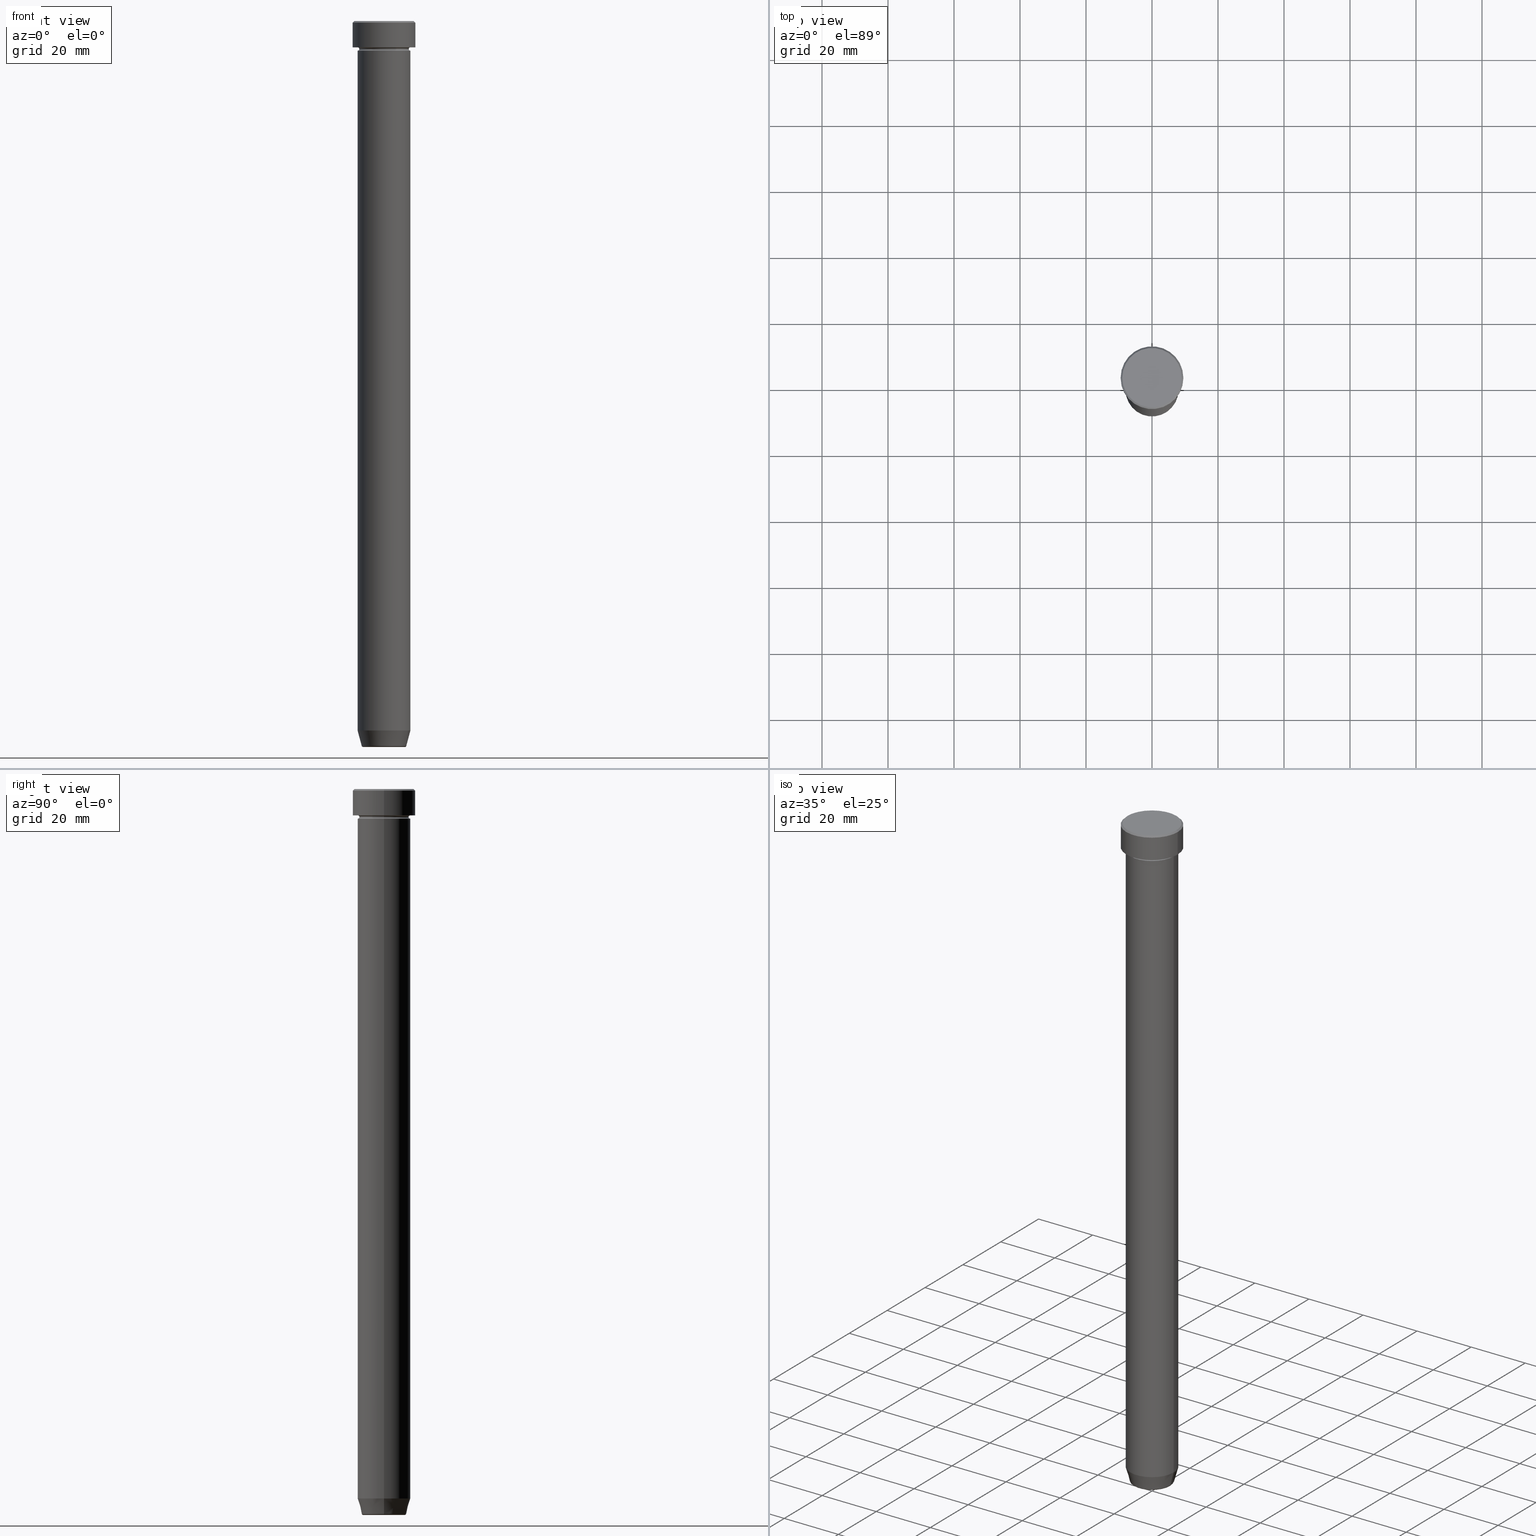
[diagram: canonical four-view strip — front | top / right | iso, engineering-drawing reading convention]
A machine part, canonical four-view strip (front | top / right | iso — engineering-drawing reading convention). The complete STEP part file that produces these views, byte-faithful:
ISO-10303-21;
HEADER;
FILE_DESCRIPTION (( 'STEP AP203' ),
    '1' );
FILE_NAME ('68cf.STEP',
    '2024-01-02T22:10:11',
    ( '' ),
    ( '' ),
    'SwSTEP 2.0',
    'SolidWorks 2019',
    '' );
FILE_SCHEMA (( 'CONFIG_CONTROL_DESIGN' ));
ENDSEC;

DATA;
#1 = DIRECTION ( 'NONE',  ( -0.000000000000000000, -1.000000000000000000, -0.000000000000000000 ) ) ;
#2 = EDGE_CURVE ( 'NONE', #272, #410, #434, .T. ) ;
#3 = AXIS2_PLACEMENT_3D ( 'NONE', #314, #321, #504 ) ;
#4 =( GEOMETRIC_REPRESENTATION_CONTEXT ( 3 ) GLOBAL_UNCERTAINTY_ASSIGNED_CONTEXT ( ( #342 ) ) GLOBAL_UNIT_ASSIGNED_CONTEXT ( ( #583, #220, #405 ) ) REPRESENTATION_CONTEXT ( 'NONE', 'WORKASPACE' ) );
#5 = DIRECTION ( 'NONE',  ( -0.000000000000000000, -0.000000000000000000, 1.000000000000000000 ) ) ;
#6 = ADVANCED_FACE ( 'NONE', ( #62 ), #565, .T. ) ;
#7 = CARTESIAN_POINT ( 'NONE',  ( 0.000000000000000000, 0.000000000000000000, 0.000000000000000000 ) ) ;
#8 = DIRECTION ( 'NONE',  ( 1.000000000000000000, 0.000000000000000000, 0.000000000000000000 ) ) ;
#9 = AXIS2_PLACEMENT_3D ( 'NONE', #75, #124, #331 ) ;
#10 = CARTESIAN_POINT ( 'NONE',  ( 8.000000000000000000, 0.000000000000000000, -22.00000000000000000 ) ) ;
#11 = AXIS2_PLACEMENT_3D ( 'NONE', #529, #24, #266 ) ;
#12 = ORIENTED_EDGE ( 'NONE', *, *, #205, .T. ) ;
#13 = CARTESIAN_POINT ( 'NONE',  ( -9.500000000000000000, 1.163414459189985485E-15, -0.4999999999999968914 ) ) ;
#14 = DIRECTION ( 'NONE',  ( -1.000000000000000000, 0.000000000000000000, 0.000000000000000000 ) ) ;
#15 = EDGE_LOOP ( 'NONE', ( #177, #73 ) ) ;
#16 = LINE ( 'NONE', #152, #151 ) ;
#17 = DIRECTION ( 'NONE',  ( -1.000000000000000000, 0.000000000000000000, 0.000000000000000000 ) ) ;
#18 = ADVANCED_FACE ( 'NONE', ( #213 ), #460, .F. ) ;
#19 = ORIENTED_EDGE ( 'NONE', *, *, #248, .F. ) ;
#20 = DIRECTION ( 'NONE',  ( -0.000000000000000000, -0.000000000000000000, 1.000000000000000000 ) ) ;
#21 = CIRCLE ( 'NONE', #508, 0.5000000000000004441 ) ;
#22 = PRODUCT_DEFINITION_FORMATION_WITH_SPECIFIED_SOURCE ( 'LIBOVOLN�', '', #510, .NOT_KNOWN. ) ;
#23 = ORIENTED_EDGE ( 'NONE', *, *, #292, .F. ) ;
#24 = DIRECTION ( 'NONE',  ( -0.000000000000000000, -0.000000000000000000, 1.000000000000000000 ) ) ;
#25 = ORIENTED_EDGE ( 'NONE', *, *, #348, .F. ) ;
#26 = CARTESIAN_POINT ( 'NONE',  ( -6.276590543854897675, 7.686606519090446054E-16, -219.5000000000000000 ) ) ;
#27 = EDGE_CURVE ( 'NONE', #484, #114, #570, .T. ) ;
#28 = CIRCLE ( 'NONE', #534, 6.759553456999428001 ) ;
#29 = APPROVAL_STATUS ( 'not_yet_approved' ) ;
#30 = ORIENTED_EDGE ( 'NONE', *, *, #2, .F. ) ;
#31 = FACE_OUTER_BOUND ( 'NONE', #493, .T. ) ;
#32 = AXIS2_PLACEMENT_3D ( 'NONE', #588, #540, #122 ) ;
#33 = CARTESIAN_POINT ( 'NONE',  ( 0.000000000000000000, 0.000000000000000000, 0.000000000000000000 ) ) ;
#34 = VERTEX_POINT ( 'NONE', #531 ) ;
#35 = CC_DESIGN_PERSON_AND_ORGANIZATION_ASSIGNMENT ( #240, #76, ( #22 ) ) ;
#36 = CYLINDRICAL_SURFACE ( 'NONE', #102, 9.500000000000000000 ) ;
#37 = APPROVAL_ROLE ( '' ) ;
#38 = EDGE_LOOP ( 'NONE', ( #225, #232, #66, #397 ) ) ;
#39 = CYLINDRICAL_SURFACE ( 'NONE', #499, 8.000000000000000000 ) ;
#40 = CALENDAR_DATE ( 2024, 2, 1 ) ;
#41 = CIRCLE ( 'NONE', #413, 9.500000000000000000 ) ;
#42 = AXIS2_PLACEMENT_3D ( 'NONE', #418, #148, #421 ) ;
#43 = EDGE_CURVE ( 'NONE', #578, #78, #519, .T. ) ;
#44 = DIRECTION ( 'NONE',  ( 1.000000000000000000, 0.000000000000000000, 0.000000000000000000 ) ) ;
#45 = EDGE_CURVE ( 'NONE', #161, #467, #55, .T. ) ;
#46 = CARTESIAN_POINT ( 'NONE',  ( 9.500000000000000000, 0.000000000000000000, -8.000000000000000000 ) ) ;
#47 = CC_DESIGN_PERSON_AND_ORGANIZATION_ASSIGNMENT ( #282, #365, ( #22 ) ) ;
#48 = CARTESIAN_POINT ( 'NONE',  ( 0.000000000000000000, 0.000000000000000000, -8.000000000000000000 ) ) ;
#49 = CARTESIAN_POINT ( 'NONE',  ( -9.000000000000001776, 0.000000000000000000, 0.000000000000000000 ) ) ;
#50 = AXIS2_PLACEMENT_3D ( 'NONE', #576, #356, #343 ) ;
#51 = DIRECTION ( 'NONE',  ( 1.000000000000000000, 0.000000000000000000, 0.000000000000000000 ) ) ;
#52 = DIRECTION ( 'NONE',  ( -0.000000000000000000, -0.000000000000000000, 1.000000000000000000 ) ) ;
#53 = EDGE_CURVE ( 'NONE', #63, #543, #466, .T. ) ;
#54 = FACE_OUTER_BOUND ( 'NONE', #208, .T. ) ;
#55 = LINE ( 'NONE', #430, #552 ) ;
#56 = FACE_OUTER_BOUND ( 'NONE', #15, .T. ) ;
#57 = TOROIDAL_SURFACE ( 'NONE', #300, 6.276590543854897675, 0.5000000000000000000 ) ;
#58 = ORIENTED_EDGE ( 'NONE', *, *, #96, .F. ) ;
#59 = CARTESIAN_POINT ( 'NONE',  ( 0.000000000000000000, 0.000000000000000000, -8.000000000000000000 ) ) ;
#60 = AXIS2_PLACEMENT_3D ( 'NONE', #432, #256, #426 ) ;
#61 = ORIENTED_EDGE ( 'NONE', *, *, #506, .T. ) ;
#62 = FACE_OUTER_BOUND ( 'NONE', #390, .T. ) ;
#63 = VERTEX_POINT ( 'NONE', #100 ) ;
#64 = CARTESIAN_POINT ( 'NONE',  ( 8.000000000000000000, 9.797174393178825657E-16, -8.500000000000000000 ) ) ;
#65 = EDGE_CURVE ( 'NONE', #157, #233, #239, .T. ) ;
#66 = ORIENTED_EDGE ( 'NONE', *, *, #381, .T. ) ;
#67 = FACE_OUTER_BOUND ( 'NONE', #392, .T. ) ;
#68 = AXIS2_PLACEMENT_3D ( 'NONE', #530, #350, #255 ) ;
#69 = ORIENTED_EDGE ( 'NONE', *, *, #283, .T. ) ;
#70 = DIRECTION ( 'NONE',  ( 1.000000000000000000, 0.000000000000000000, 0.000000000000000000 ) ) ;
#71 = AXIS2_PLACEMENT_3D ( 'NONE', #380, #5, #51 ) ;
#72 = ORIENTED_EDGE ( 'NONE', *, *, #43, .F. ) ;
#73 = ORIENTED_EDGE ( 'NONE', *, *, #348, .T. ) ;
#74 = APPROVAL ( #29, 'NEUR�EN�' ) ;
#75 = CARTESIAN_POINT ( 'NONE',  ( 0.000000000000000000, 0.000000000000000000, -22.00000000000000000 ) ) ;
#76 = PERSON_AND_ORGANIZATION_ROLE ( 'design_supplier' ) ;
#77 = ORIENTED_EDGE ( 'NONE', *, *, #561, .T. ) ;
#78 = VERTEX_POINT ( 'NONE', #89 ) ;
#79 = CYLINDRICAL_SURFACE ( 'NONE', #32, 8.000000000000000000 ) ;
#80 = FACE_OUTER_BOUND ( 'NONE', #352, .T. ) ;
#81 = ORIENTED_EDGE ( 'NONE', *, *, #561, .F. ) ;
#82 = CARTESIAN_POINT ( 'NONE',  ( 0.000000000000000000, 0.000000000000000000, -8.500000000000000000 ) ) ;
#83 = AXIS2_PLACEMENT_3D ( 'NONE', #320, #171, #219 ) ;
#84 = APPROVAL_DATE_TIME ( #598, #440 ) ;
#85 = ORIENTED_EDGE ( 'NONE', *, *, #45, .T. ) ;
#86 = LOCAL_TIME ( 23, 10, 11.00000000000000000, #181 ) ;
#87 = CARTESIAN_POINT ( 'NONE',  ( 8.000000000000000000, 0.000000000000000000, 0.000000000000000000 ) ) ;
#88 = FACE_OUTER_BOUND ( 'NONE', #400, .T. ) ;
#89 = CARTESIAN_POINT ( 'NONE',  ( 9.500000000000000000, 0.000000000000000000, -0.4999999999999968914 ) ) ;
#90 = APPROVAL_ROLE ( '' ) ;
#91 = CC_DESIGN_DATE_AND_TIME_ASSIGNMENT ( #128, #497, ( #245 ) ) ;
#92 = APPROVAL_ROLE ( '' ) ;
#93 = DIRECTION ( 'NONE',  ( -0.000000000000000000, -0.000000000000000000, 1.000000000000000000 ) ) ;
#94 = CIRCLE ( 'NONE', #250, 9.500000000000000000 ) ;
#95 = CC_DESIGN_APPROVAL ( #440, ( #245 ) ) ;
#96 = EDGE_CURVE ( 'NONE', #120, #176, #28, .T. ) ;
#97 = DIRECTION ( 'NONE',  ( 1.000000000000000000, 0.000000000000000000, 0.000000000000000000 ) ) ;
#98 = CYLINDRICAL_SURFACE ( 'NONE', #554, 8.000000000000000000 ) ;
#99 = FACE_OUTER_BOUND ( 'NONE', #394, .T. ) ;
#100 = CARTESIAN_POINT ( 'NONE',  ( -9.000000000000001776, 0.000000000000000000, 0.000000000000000000 ) ) ;
#101 = CC_DESIGN_PERSON_AND_ORGANIZATION_ASSIGNMENT ( #126, #491, ( #510 ) ) ;
#102 = AXIS2_PLACEMENT_3D ( 'NONE', #443, #415, #270 ) ;
#103 = AXIS2_PLACEMENT_3D ( 'NONE', #333, #1, #458 ) ;
#104 = DIRECTION ( 'NONE',  ( 1.000000000000000000, 0.000000000000000000, 0.000000000000000000 ) ) ;
#105 = CARTESIAN_POINT ( 'NONE',  ( 9.000000000000001776, 1.102182119232617911E-15, 0.000000000000000000 ) ) ;
#106 = CARTESIAN_POINT ( 'NONE',  ( 8.000000000000000000, 0.000000000000000000, -22.00000000000000000 ) ) ;
#107 = VECTOR ( 'NONE', #469, 999.9999999999998863 ) ;
#108 = ORIENTED_EDGE ( 'NONE', *, *, #283, .F. ) ;
#109 = CARTESIAN_POINT ( 'NONE',  ( 0.000000000000000000, 0.000000000000000000, 0.000000000000000000 ) ) ;
#110 = ORIENTED_EDGE ( 'NONE', *, *, #473, .T. ) ;
#111 = ORIENTED_EDGE ( 'NONE', *, *, #316, .F. ) ;
#112 = CARTESIAN_POINT ( 'NONE',  ( 0.000000000000000000, 0.000000000000000000, -219.6294095225512422 ) ) ;
#113 = EDGE_CURVE ( 'NONE', #535, #435, #211, .T. ) ;
#114 = VERTEX_POINT ( 'NONE', #228 ) ;
#115 = CARTESIAN_POINT ( 'NONE',  ( -9.500000000000000000, 1.163414459189985485E-15, -8.000000000000000000 ) ) ;
#116 = ADVANCED_FACE ( 'NONE', ( #88 ), #388, .F. ) ;
#117 = CARTESIAN_POINT ( 'NONE',  ( 0.000000000000000000, 0.000000000000000000, -8.500000000000000000 ) ) ;
#118 = DIRECTION ( 'NONE',  ( 1.000000000000000000, 0.000000000000000000, 0.000000000000000000 ) ) ;
#119 = ORIENTED_EDGE ( 'NONE', *, *, #375, .F. ) ;
#120 = VERTEX_POINT ( 'NONE', #280 ) ;
#121 = EDGE_LOOP ( 'NONE', ( #19, #525, #170, #165 ) ) ;
#122 = DIRECTION ( 'NONE',  ( 1.000000000000000000, 0.000000000000000000, 0.000000000000000000 ) ) ;
#123 = CIRCLE ( 'NONE', #226, 0.4999999999999995559 ) ;
#124 = DIRECTION ( 'NONE',  ( 0.000000000000000000, 0.000000000000000000, -1.000000000000000000 ) ) ;
#125 = ORIENTED_EDGE ( 'NONE', *, *, #238, .F. ) ;
#126 = PERSON_AND_ORGANIZATION ( #290, #327 ) ;
#127 = FACE_OUTER_BOUND ( 'NONE', #318, .T. ) ;
#128 = DATE_AND_TIME ( #444, #196 ) ;
#129 = ORIENTED_EDGE ( 'NONE', *, *, #198, .T. ) ;
#130 = ORIENTED_EDGE ( 'NONE', *, *, #457, .F. ) ;
#131 = CARTESIAN_POINT ( 'NONE',  ( 0.000000000000000000, 0.000000000000000000, -22.00000000000000000 ) ) ;
#132 = AXIS2_PLACEMENT_3D ( 'NONE', #242, #584, #183 ) ;
#133 = APPROVAL_DATE_TIME ( #140, #515 ) ;
#134 = CARTESIAN_POINT ( 'NONE',  ( 6.759553456999428001, 0.000000000000000000, -219.6294095225512422 ) ) ;
#135 = ADVANCED_FACE ( 'NONE', ( #411 ), #36, .T. ) ;
#136 = TOROIDAL_SURFACE ( 'NONE', #312, 6.276590543854897675, 0.5000000000000000000 ) ;
#137 = AXIS2_PLACEMENT_3D ( 'NONE', #141, #93, #559 ) ;
#138 = ORIENTED_EDGE ( 'NONE', *, *, #423, .F. ) ;
#139 = DIRECTION ( 'NONE',  ( -0.000000000000000000, -0.000000000000000000, 1.000000000000000000 ) ) ;
#140 = DATE_AND_TIME ( #456, #86 ) ;
#141 = CARTESIAN_POINT ( 'NONE',  ( 0.000000000000000000, 0.000000000000000000, -8.000000000000000000 ) ) ;
#142 = ADVANCED_FACE ( 'NONE', ( #592 ), #184, .F. ) ;
#143 = CARTESIAN_POINT ( 'NONE',  ( 0.000000000000000000, 0.000000000000000000, -220.0000000000000000 ) ) ;
#144 = AXIS2_PLACEMENT_3D ( 'NONE', #82, #541, #364 ) ;
#145 = CIRCLE ( 'NONE', #60, 8.000000000000000000 ) ;
#146 = LOCAL_TIME ( 23, 10, 11.00000000000000000, #487 ) ;
#147 = ADVANCED_BREP_SHAPE_REPRESENTATION ( '68cf', ( #490, #303, #83 ), #4 ) ;
#148 = DIRECTION ( 'NONE',  ( -0.000000000000000000, -0.000000000000000000, 1.000000000000000000 ) ) ;
#149 = CARTESIAN_POINT ( 'NONE',  ( 0.000000000000000000, 0.000000000000000000, -22.00000000000000000 ) ) ;
#150 = DIRECTION ( 'NONE',  ( -0.000000000000000000, -0.000000000000000000, 1.000000000000000000 ) ) ;
#151 = VECTOR ( 'NONE', #520, 1000.000000000000000 ) ;
#152 = CARTESIAN_POINT ( 'NONE',  ( 9.500000000000000000, 0.000000000000000000, 0.000000000000000000 ) ) ;
#153 = EDGE_CURVE ( 'NONE', #114, #120, #123, .T. ) ;
#154 = DIRECTION ( 'NONE',  ( -1.000000000000000000, 0.000000000000000000, -0.000000000000000000 ) ) ;
#155 = ORIENTED_EDGE ( 'NONE', *, *, #468, .F. ) ;
#156 = DIRECTION ( 'NONE',  ( 0.000000000000000000, -1.000000000000000000, 0.000000000000000000 ) ) ;
#157 = VERTEX_POINT ( 'NONE', #597 ) ;
#158 = APPLICATION_CONTEXT ( 'configuration controlled 3d designs of mechanical parts and assemblies' ) ;
#159 = EDGE_CURVE ( 'NONE', #435, #359, #194, .T. ) ;
#160 = AXIS2_PLACEMENT_3D ( 'NONE', #259, #203, #389 ) ;
#161 = VERTEX_POINT ( 'NONE', #371 ) ;
#162 = DIRECTION ( 'NONE',  ( -0.000000000000000000, -0.000000000000000000, 1.000000000000000000 ) ) ;
#163 = ORIENTED_EDGE ( 'NONE', *, *, #521, .T. ) ;
#164 = CIRCLE ( 'NONE', #172, 8.000000000000000000 ) ;
#165 = ORIENTED_EDGE ( 'NONE', *, *, #159, .T. ) ;
#166 = DIRECTION ( 'NONE',  ( -1.000000000000000000, -1.224646799147353454E-16, 0.000000000000000000 ) ) ;
#167 = DIRECTION ( 'NONE',  ( -1.000000000000000000, 0.000000000000000000, 0.000000000000000000 ) ) ;
#168 = ADVANCED_FACE ( 'NONE', ( #127 ), #407, .T. ) ;
#169 = EDGE_LOOP ( 'NONE', ( #344, #311 ) ) ;
#170 = ORIENTED_EDGE ( 'NONE', *, *, #419, .T. ) ;
#171 = DIRECTION ( 'NONE',  ( 0.000000000000000000, 0.000000000000000000, 1.000000000000000000 ) ) ;
#172 = AXIS2_PLACEMENT_3D ( 'NONE', #459, #462, #295 ) ;
#173 = CARTESIAN_POINT ( 'NONE',  ( 0.000000000000000000, 0.000000000000000000, -219.5000000000000000 ) ) ;
#174 = CIRCLE ( 'NONE', #103, 0.5000000000000004441 ) ;
#175 = CC_DESIGN_APPROVAL ( #515, ( #22 ) ) ;
#176 = VERTEX_POINT ( 'NONE', #134 ) ;
#177 = ORIENTED_EDGE ( 'NONE', *, *, #27, .T. ) ;
#178 = ADVANCED_FACE ( 'NONE', ( #31 ), #136, .T. ) ;
#179 = CARTESIAN_POINT ( 'NONE',  ( 0.000000000000000000, 0.000000000000000000, 0.000000000000000000 ) ) ;
#180 = PLANE ( 'NONE',  #9 ) ;
#181 = COORDINATED_UNIVERSAL_TIME_OFFSET ( 1, 0, .AHEAD. ) ;
#182 = ADVANCED_FACE ( 'NONE', ( #453 ), #461, .F. ) ;
#183 = DIRECTION ( 'NONE',  ( 1.000000000000000000, 0.000000000000000000, 0.000000000000000000 ) ) ;
#184 = TOROIDAL_SURFACE ( 'NONE', #144, 8.000000000000000000, 0.5000000000000000000 ) ;
#185 = PERSON_AND_ORGANIZATION ( #290, #327 ) ;
#186 = ORIENTED_EDGE ( 'NONE', *, *, #248, .T. ) ;
#187 = DIRECTION ( 'NONE',  ( -1.000000000000000000, 0.000000000000000000, 0.000000000000000000 ) ) ;
#188 = AXIS2_PLACEMENT_3D ( 'NONE', #326, #501, #187 ) ;
#189 = CIRCLE ( 'NONE', #231, 6.276590543854897675 ) ;
#190 = DIRECTION ( 'NONE',  ( 1.000000000000000000, 0.000000000000000000, 0.000000000000000000 ) ) ;
#191 = ADVANCED_FACE ( 'NONE', ( #317, #80 ), #492, .T. ) ;
#192 = DIRECTION ( 'NONE',  ( 0.2588190451025214056, 0.000000000000000000, 0.9659258262890680902 ) ) ;
#193 = CARTESIAN_POINT ( 'NONE',  ( 6.660254037844373975, 0.000000000000000000, -220.0000000000000000 ) ) ;
#194 = CIRCLE ( 'NONE', #287, 8.000000000000000000 ) ;
#195 = CIRCLE ( 'NONE', #137, 8.000000000000000000 ) ;
#196 = LOCAL_TIME ( 23, 10, 11.00000000000000000, #505 ) ;
#197 = DIRECTION ( 'NONE',  ( -0.000000000000000000, -0.000000000000000000, 1.000000000000000000 ) ) ;
#198 = EDGE_CURVE ( 'NONE', #543, #78, #41, .T. ) ;
#199 = DIRECTION ( 'NONE',  ( -0.000000000000000000, -0.000000000000000000, 1.000000000000000000 ) ) ;
#200 = AXIS2_PLACEMENT_3D ( 'NONE', #347, #297, #154 ) ;
#201 = DIRECTION ( 'NONE',  ( 0.000000000000000000, 0.000000000000000000, -1.000000000000000000 ) ) ;
#202 = CONICAL_SURFACE ( 'NONE', #439, 9.000000000000001776, 0.7853981633974501664 ) ;
#203 = DIRECTION ( 'NONE',  ( 0.000000000000000000, 0.000000000000000000, -1.000000000000000000 ) ) ;
#204 = DIRECTION ( 'NONE',  ( 0.000000000000000000, 0.000000000000000000, -1.000000000000000000 ) ) ;
#205 = EDGE_CURVE ( 'NONE', #535, #278, #275, .T. ) ;
#206 = EDGE_LOOP ( 'NONE', ( #546, #488, #366, #155 ) ) ;
#207 = CARTESIAN_POINT ( 'NONE',  ( 0.000000000000000000, 0.000000000000000000, 0.000000000000000000 ) ) ;
#208 = EDGE_LOOP ( 'NONE', ( #25, #218, #138, #532 ) ) ;
#209 = ORIENTED_EDGE ( 'NONE', *, *, #153, .F. ) ;
#210 = DIRECTION ( 'NONE',  ( 0.000000000000000000, -0.000000000000000000, 1.000000000000000000 ) ) ;
#211 = LINE ( 'NONE', #87, #319 ) ;
#212 = ORIENTED_EDGE ( 'NONE', *, *, #45, .F. ) ;
#213 = FACE_OUTER_BOUND ( 'NONE', #522, .T. ) ;
#214 = AXIS2_PLACEMENT_3D ( 'NONE', #509, #247, #8 ) ;
#215 = ADVANCED_FACE ( 'NONE', ( #589 ), #180, .F. ) ;
#216 = DIRECTION ( 'NONE',  ( 1.000000000000000000, 0.000000000000000000, 0.000000000000000000 ) ) ;
#217 = APPROVAL_PERSON_ORGANIZATION ( #412, #440, #92 ) ;
#218 = ORIENTED_EDGE ( 'NONE', *, *, #153, .T. ) ;
#219 = DIRECTION ( 'NONE',  ( 1.000000000000000000, 0.000000000000000000, 0.000000000000000000 ) ) ;
#220 =( NAMED_UNIT ( * ) PLANE_ANGLE_UNIT ( ) SI_UNIT ( $, .RADIAN. ) );
#221 = VECTOR ( 'NONE', #514, 999.9999999999998863 ) ;
#222 = CARTESIAN_POINT ( 'NONE',  ( 0.000000000000000000, 0.000000000000000000, -9.000000000000001776 ) ) ;
#223 = APPLICATION_PROTOCOL_DEFINITION ( 'international standard', 'config_control_design', 1994, #158 ) ;
#224 = EDGE_CURVE ( 'NONE', #431, #34, #483, .T. ) ;
#225 = ORIENTED_EDGE ( 'NONE', *, *, #496, .F. ) ;
#226 = AXIS2_PLACEMENT_3D ( 'NONE', #26, #368, #544 ) ;
#227 = DIRECTION ( 'NONE',  ( 0.000000000000000000, 0.000000000000000000, -1.000000000000000000 ) ) ;
#228 = CARTESIAN_POINT ( 'NONE',  ( -6.276590543854897675, 7.982336011935114439E-16, -220.0000000000000000 ) ) ;
#229 = AXIS2_PLACEMENT_3D ( 'NONE', #268, #304, #204 ) ;
#230 = DIRECTION ( 'NONE',  ( 0.000000000000000000, 0.000000000000000000, -1.000000000000000000 ) ) ;
#231 = AXIS2_PLACEMENT_3D ( 'NONE', #143, #201, #293 ) ;
#232 = ORIENTED_EDGE ( 'NONE', *, *, #96, .T. ) ;
#233 = VERTEX_POINT ( 'NONE', #276 ) ;
#234 = ADVANCED_FACE ( 'NONE', ( #486 ), #39, .T. ) ;
#235 = CARTESIAN_POINT ( 'NONE',  ( 0.000000000000000000, 0.000000000000000000, -0.4999999999999968914 ) ) ;
#236 = CALENDAR_DATE ( 2024, 2, 1 ) ;
#237 = ORIENTED_EDGE ( 'NONE', *, *, #43, .T. ) ;
#238 = EDGE_CURVE ( 'NONE', #233, #467, #164, .T. ) ;
#239 = LINE ( 'NONE', #328, #494 ) ;
#240 = PERSON_AND_ORGANIZATION ( #290, #327 ) ;
#241 = EDGE_CURVE ( 'NONE', #278, #359, #424, .T. ) ;
#242 = CARTESIAN_POINT ( 'NONE',  ( 0.000000000000000000, 0.000000000000000000, -8.500000000000000000 ) ) ;
#243 = CONICAL_SURFACE ( 'NONE', #214, 6.660254037844373975, 0.2617993877991501295 ) ;
#244 = PERSON_AND_ORGANIZATION_ROLE ( 'creator' ) ;
#245 = SECURITY_CLASSIFICATION ( '', '', #362 ) ;
#246 = DIRECTION ( 'NONE',  ( -1.000000000000000000, 1.224646799147353454E-16, 0.000000000000000000 ) ) ;
#247 = DIRECTION ( 'NONE',  ( -0.000000000000000000, -0.000000000000000000, 1.000000000000000000 ) ) ;
#248 = EDGE_CURVE ( 'NONE', #431, #359, #573, .T. ) ;
#249 = CARTESIAN_POINT ( 'NONE',  ( 0.000000000000000000, 0.000000000000000000, -22.00000000000000000 ) ) ;
#250 = AXIS2_PLACEMENT_3D ( 'NONE', #48, #150, #97 ) ;
#251 = ADVANCED_FACE ( 'NONE', ( #511 ), #98, .T. ) ;
#252 = DIRECTION ( 'NONE',  ( -0.000000000000000000, -0.000000000000000000, 1.000000000000000000 ) ) ;
#253 = LINE ( 'NONE', #289, #555 ) ;
#254 = DESIGN_CONTEXT ( 'detailed design', #158, 'design' ) ;
#255 = DIRECTION ( 'NONE',  ( -1.000000000000000000, 0.000000000000000000, 0.000000000000000000 ) ) ;
#256 = DIRECTION ( 'NONE',  ( -0.000000000000000000, -0.000000000000000000, 1.000000000000000000 ) ) ;
#257 = ADVANCED_FACE ( 'NONE', ( #54 ), #57, .T. ) ;
#258 = CIRCLE ( 'NONE', #476, 8.000000000000000000 ) ;
#259 = CARTESIAN_POINT ( 'NONE',  ( 0.000000000000000000, 0.000000000000000000, -220.0000000000000000 ) ) ;
#260 = DIRECTION ( 'NONE',  ( -0.000000000000000000, -0.000000000000000000, 1.000000000000000000 ) ) ;
#261 = ORIENTED_EDGE ( 'NONE', *, *, #521, .F. ) ;
#262 = CARTESIAN_POINT ( 'NONE',  ( 0.000000000000000000, 0.000000000000000000, 0.000000000000000000 ) ) ;
#263 = DIRECTION ( 'NONE',  ( -0.000000000000000000, -0.000000000000000000, 1.000000000000000000 ) ) ;
#264 = ORIENTED_EDGE ( 'NONE', *, *, #373, .F. ) ;
#265 = AXIS2_PLACEMENT_3D ( 'NONE', #117, #308, #14 ) ;
#266 = DIRECTION ( 'NONE',  ( 1.000000000000000000, 0.000000000000000000, 0.000000000000000000 ) ) ;
#267 = CONICAL_SURFACE ( 'NONE', #586, 6.660254037844373975, 0.2617993877991501295 ) ;
#268 = CARTESIAN_POINT ( 'NONE',  ( 6.276590543854897675, 0.000000000000000000, -219.5000000000000000 ) ) ;
#269 = ADVANCED_FACE ( 'NONE', ( #286 ), #376, .T. ) ;
#270 = DIRECTION ( 'NONE',  ( 1.000000000000000000, 0.000000000000000000, 0.000000000000000000 ) ) ;
#271 = COORDINATED_UNIVERSAL_TIME_OFFSET ( 1, 0, .AHEAD. ) ;
#272 = VERTEX_POINT ( 'NONE', #337 ) ;
#273 = DIRECTION ( 'NONE',  ( 0.000000000000000000, 0.000000000000000000, -1.000000000000000000 ) ) ;
#274 = PRODUCT_DEFINITION ( 'NEZN�M�', '', #22, #254 ) ;
#275 = CIRCLE ( 'NONE', #427, 8.000000000000000000 ) ;
#276 = CARTESIAN_POINT ( 'NONE',  ( -8.000000000000000000, 9.797174393178825657E-16, -22.00000000000000000 ) ) ;
#277 = CC_DESIGN_SECURITY_CLASSIFICATION ( #245, ( #22 ) ) ;
#278 = VERTEX_POINT ( 'NONE', #560 ) ;
#279 = APPLICATION_CONTEXT ( 'configuration controlled 3d designs of mechanical parts and assemblies' ) ;
#280 = CARTESIAN_POINT ( 'NONE',  ( -6.759553456999428001, 9.037619948979300296E-16, -219.6294095225512422 ) ) ;
#281 = CARTESIAN_POINT ( 'NONE',  ( 0.000000000000000000, 0.000000000000000000, -219.6294095225512422 ) ) ;
#282 = PERSON_AND_ORGANIZATION ( #290, #327 ) ;
#283 = EDGE_CURVE ( 'NONE', #582, #315, #94, .T. ) ;
#284 = DIRECTION ( 'NONE',  ( 1.000000000000000000, 0.000000000000000000, 0.000000000000000000 ) ) ;
#285 = CALENDAR_DATE ( 2024, 2, 1 ) ;
#286 = FACE_OUTER_BOUND ( 'NONE', #309, .T. ) ;
#287 = AXIS2_PLACEMENT_3D ( 'NONE', #222, #402, #446 ) ;
#288 = CIRCLE ( 'NONE', #475, 0.5000000000000004441 ) ;
#289 = CARTESIAN_POINT ( 'NONE',  ( -9.500000000000000000, 1.163414459189985485E-15, 0.000000000000000000 ) ) ;
#290 = PERSON ( 'NEUR�EN�', 'NEUR�EN�', 'NEUR�EN�', ('NEUR�EN�'), ('NEUR�EN�'), ('NEUR�EN�') ) ;
#291 = DIRECTION ( 'NONE',  ( 1.224646799147353207E-16, 1.000000000000000000, 0.000000000000000000 ) ) ;
#292 = EDGE_CURVE ( 'NONE', #278, #535, #336, .T. ) ;
#293 = DIRECTION ( 'NONE',  ( 1.000000000000000000, 0.000000000000000000, 0.000000000000000000 ) ) ;
#294 = AXIS2_PLACEMENT_3D ( 'NONE', #59, #260, #306 ) ;
#295 = DIRECTION ( 'NONE',  ( 1.000000000000000000, 0.000000000000000000, 0.000000000000000000 ) ) ;
#296 = CARTESIAN_POINT ( 'NONE',  ( 0.000000000000000000, 0.000000000000000000, -220.0000000000000000 ) ) ;
#297 = DIRECTION ( 'NONE',  ( 0.000000000000000000, 0.000000000000000000, -1.000000000000000000 ) ) ;
#298 = EDGE_LOOP ( 'NONE', ( #357, #567, #85, #125 ) ) ;
#299 = DIRECTION ( 'NONE',  ( 0.000000000000000000, 0.000000000000000000, -1.000000000000000000 ) ) ;
#300 = AXIS2_PLACEMENT_3D ( 'NONE', #425, #374, #420 ) ;
#301 = CONICAL_SURFACE ( 'NONE', #377, 9.000000000000001776, 0.7853981633974501664 ) ;
#302 = CC_DESIGN_APPROVAL ( #74, ( #274 ) ) ;
#303 = MANIFOLD_SOLID_BREP ( 'Zaoblit4', #581 ) ;
#304 = DIRECTION ( 'NONE',  ( 0.000000000000000000, -1.000000000000000000, 0.000000000000000000 ) ) ;
#305 = ORIENTED_EDGE ( 'NONE', *, *, #205, .F. ) ;
#306 = DIRECTION ( 'NONE',  ( 1.000000000000000000, 0.000000000000000000, 0.000000000000000000 ) ) ;
#307 = EDGE_CURVE ( 'NONE', #582, #543, #253, .T. ) ;
#308 = DIRECTION ( 'NONE',  ( 0.000000000000000000, 0.000000000000000000, -1.000000000000000000 ) ) ;
#309 = EDGE_LOOP ( 'NONE', ( #163, #575, #129, #385 ) ) ;
#310 = CARTESIAN_POINT ( 'NONE',  ( -7.500000000000000000, 9.491012693391985815E-16, -8.500000000000000000 ) ) ;
#311 = ORIENTED_EDGE ( 'NONE', *, *, #238, .T. ) ;
#312 = AXIS2_PLACEMENT_3D ( 'NONE', #173, #361, #190 ) ;
#313 = VECTOR ( 'NONE', #192, 1000.000000000000000 ) ;
#314 = CARTESIAN_POINT ( 'NONE',  ( 0.000000000000000000, 0.000000000000000000, -8.500000000000000000 ) ) ;
#315 = VERTEX_POINT ( 'NONE', #46 ) ;
#316 = EDGE_CURVE ( 'NONE', #78, #543, #370, .T. ) ;
#317 = FACE_BOUND ( 'NONE', #478, .T. ) ;
#318 = EDGE_LOOP ( 'NONE', ( #12, #591, #471, #594 ) ) ;
#319 = VECTOR ( 'NONE', #512, 1000.000000000000000 ) ;
#320 = CARTESIAN_POINT ( 'NONE',  ( 0.000000000000000000, 0.000000000000000000, 0.000000000000000000 ) ) ;
#321 = DIRECTION ( 'NONE',  ( -0.000000000000000000, -0.000000000000000000, 1.000000000000000000 ) ) ;
#322 = DATE_TIME_ROLE ( 'creation_date' ) ;
#323 = ORIENTED_EDGE ( 'NONE', *, *, #468, .T. ) ;
#324 = ORIENTED_EDGE ( 'NONE', *, *, #503, .F. ) ;
#325 = CIRCLE ( 'NONE', #50, 9.000000000000001776 ) ;
#326 = CARTESIAN_POINT ( 'NONE',  ( 0.000000000000000000, 0.000000000000000000, -8.500000000000000000 ) ) ;
#327 = ORGANIZATION ( 'NEUR�EN�', 'NEUR�EN�', '' ) ;
#328 = CARTESIAN_POINT ( 'NONE',  ( -8.000000000000000000, 9.797174393178825657E-16, 0.000000000000000000 ) ) ;
#329 = ADVANCED_FACE ( 'NONE', ( #99 ), #243, .T. ) ;
#330 = ORIENTED_EDGE ( 'NONE', *, *, #27, .F. ) ;
#331 = DIRECTION ( 'NONE',  ( -1.000000000000000000, 0.000000000000000000, -0.000000000000000000 ) ) ;
#332 = PERSON_AND_ORGANIZATION ( #290, #327 ) ;
#333 = CARTESIAN_POINT ( 'NONE',  ( -8.000000000000000000, 0.000000000000000000, -8.500000000000000000 ) ) ;
#334 = PRODUCT_DEFINITION_SHAPE ( 'NONE', 'NONE',  #274 ) ;
#335 = CARTESIAN_POINT ( 'NONE',  ( 0.000000000000000000, 0.000000000000000000, -0.4999999999999968914 ) ) ;
#336 = CIRCLE ( 'NONE', #422, 8.000000000000000000 ) ;
#337 = CARTESIAN_POINT ( 'NONE',  ( 8.000000000000000000, 9.797174393178825657E-16, -8.000000000000000000 ) ) ;
#338 = DIRECTION ( 'NONE',  ( -0.000000000000000000, -0.000000000000000000, 1.000000000000000000 ) ) ;
#339 = CARTESIAN_POINT ( 'NONE',  ( -8.000000000000000000, 9.797174393178825657E-16, 0.000000000000000000 ) ) ;
#340 = CIRCLE ( 'NONE', #11, 8.000000000000000000 ) ;
#341 = PRODUCT_RELATED_PRODUCT_CATEGORY ( 'detail', '', ( #510 ) ) ;
#342 = UNCERTAINTY_MEASURE_WITH_UNIT (LENGTH_MEASURE( 1.000000000000000082E-05 ), #583, 'distance_accuracy_value', 'NONE');
#343 = DIRECTION ( 'NONE',  ( 1.000000000000000000, 0.000000000000000000, 0.000000000000000000 ) ) ;
#344 = ORIENTED_EDGE ( 'NONE', *, *, #375, .T. ) ;
#345 = CARTESIAN_POINT ( 'NONE',  ( 6.276590543854897675, 0.000000000000000000, -220.0000000000000000 ) ) ;
#346 = ORIENTED_EDGE ( 'NONE', *, *, #224, .T. ) ;
#347 = CARTESIAN_POINT ( 'NONE',  ( 0.000000000000000000, 8.000000000000000000, -22.00000000000000000 ) ) ;
#348 = EDGE_CURVE ( 'NONE', #114, #484, #189, .T. ) ;
#349 = CARTESIAN_POINT ( 'NONE',  ( 0.000000000000000000, 2.081899558550500359E-14, -220.0000000000000000 ) ) ;
#350 = DIRECTION ( 'NONE',  ( -0.000000000000000000, -0.000000000000000000, 1.000000000000000000 ) ) ;
#351 = LOCAL_TIME ( 23, 10, 11.00000000000000000, #271 ) ;
#352 = EDGE_LOOP ( 'NONE', ( #261, #108 ) ) ;
#353 = CARTESIAN_POINT ( 'NONE',  ( 9.000000000000001776, 1.132798289211301698E-15, 0.000000000000000000 ) ) ;
#354 = EDGE_CURVE ( 'NONE', #161, #157, #393, .T. ) ;
#355 = ORIENTED_EDGE ( 'NONE', *, *, #480, .T. ) ;
#356 = DIRECTION ( 'NONE',  ( -0.000000000000000000, -0.000000000000000000, 1.000000000000000000 ) ) ;
#357 = ORIENTED_EDGE ( 'NONE', *, *, #65, .F. ) ;
#358 = ORIENTED_EDGE ( 'NONE', *, *, #423, .T. ) ;
#359 = VERTEX_POINT ( 'NONE', #379 ) ;
#360 = AXIS2_PLACEMENT_3D ( 'NONE', #262, #20, #562 ) ;
#361 = DIRECTION ( 'NONE',  ( -0.000000000000000000, -0.000000000000000000, 1.000000000000000000 ) ) ;
#362 = SECURITY_CLASSIFICATION_LEVEL ( 'unclassified' ) ;
#363 = ORIENTED_EDGE ( 'NONE', *, *, #354, .F. ) ;
#364 = DIRECTION ( 'NONE',  ( 1.000000000000000000, 0.000000000000000000, 0.000000000000000000 ) ) ;
#365 = PERSON_AND_ORGANIZATION_ROLE ( 'creator' ) ;
#366 = ORIENTED_EDGE ( 'NONE', *, *, #113, .T. ) ;
#367 = EDGE_CURVE ( 'NONE', #410, #272, #195, .T. ) ;
#368 = DIRECTION ( 'NONE',  ( 1.224646799147353207E-16, 1.000000000000000000, 0.000000000000000000 ) ) ;
#369 = COORDINATED_UNIVERSAL_TIME_OFFSET ( 1, 0, .AHEAD. ) ;
#370 = CIRCLE ( 'NONE', #518, 9.500000000000000000 ) ;
#371 = CARTESIAN_POINT ( 'NONE',  ( 8.000000000000000000, 0.000000000000000000, -214.9999999999999716 ) ) ;
#372 = CARTESIAN_POINT ( 'NONE',  ( 0.000000000000000000, 9.500000000000000000, -8.000000000000000000 ) ) ;
#373 = EDGE_CURVE ( 'NONE', #431, #410, #174, .T. ) ;
#374 = DIRECTION ( 'NONE',  ( -0.000000000000000000, -0.000000000000000000, 1.000000000000000000 ) ) ;
#375 = EDGE_CURVE ( 'NONE', #467, #233, #258, .T. ) ;
#376 = CYLINDRICAL_SURFACE ( 'NONE', #71, 9.500000000000000000 ) ;
#377 = AXIS2_PLACEMENT_3D ( 'NONE', #179, #227, #580 ) ;
#378 = APPROVAL_PERSON_ORGANIZATION ( #185, #74, #37 ) ;
#379 = CARTESIAN_POINT ( 'NONE',  ( -8.000000000000000000, 9.797174393178825657E-16, -9.000000000000001776 ) ) ;
#380 = CARTESIAN_POINT ( 'NONE',  ( 0.000000000000000000, 0.000000000000000000, 0.000000000000000000 ) ) ;
#381 = EDGE_CURVE ( 'NONE', #176, #161, #599, .T. ) ;
#382 = LINE ( 'NONE', #523, #428 ) ;
#383 = AXIS2_PLACEMENT_3D ( 'NONE', #112, #162, #167 ) ;
#384 = CARTESIAN_POINT ( 'NONE',  ( 0.000000000000000000, 0.000000000000000000, -8.500000000000000000 ) ) ;
#385 = ORIENTED_EDGE ( 'NONE', *, *, #506, .F. ) ;
#386 = ORIENTED_EDGE ( 'NONE', *, *, #53, .T. ) ;
#387 = DIRECTION ( 'NONE',  ( 1.000000000000000000, 0.000000000000000000, 0.000000000000000000 ) ) ;
#388 = TOROIDAL_SURFACE ( 'NONE', #132, 8.000000000000000000, 0.5000000000000000000 ) ;
#389 = DIRECTION ( 'NONE',  ( 1.000000000000000000, 0.000000000000000000, 0.000000000000000000 ) ) ;
#390 = EDGE_LOOP ( 'NONE', ( #305, #23 ) ) ;
#391 = DIRECTION ( 'NONE',  ( -1.224646799147353207E-16, 1.000000000000000000, 0.000000000000000000 ) ) ;
#392 = EDGE_LOOP ( 'NONE', ( #324, #237, #568, #498 ) ) ;
#393 = CIRCLE ( 'NONE', #42, 8.000000000000000000 ) ;
#394 = EDGE_LOOP ( 'NONE', ( #358, #579, #363, #403 ) ) ;
#395 = CARTESIAN_POINT ( 'NONE',  ( -8.000000000000000000, 0.000000000000000000, -8.000000000000000000 ) ) ;
#396 = ADVANCED_FACE ( 'NONE', ( #437 ), #441, .T. ) ;
#397 = ORIENTED_EDGE ( 'NONE', *, *, #464, .F. ) ;
#398 = APPLICATION_PROTOCOL_DEFINITION ( 'international standard', 'config_control_design', 1994, #279 ) ;
#399 = ORIENTED_EDGE ( 'NONE', *, *, #367, .F. ) ;
#400 = EDGE_LOOP ( 'NONE', ( #442, #186, #323, #448 ) ) ;
#401 = FACE_OUTER_BOUND ( 'NONE', #574, .T. ) ;
#402 = DIRECTION ( 'NONE',  ( -0.000000000000000000, -0.000000000000000000, 1.000000000000000000 ) ) ;
#403 = ORIENTED_EDGE ( 'NONE', *, *, #381, .F. ) ;
#404 = ORIENTED_EDGE ( 'NONE', *, *, #307, .F. ) ;
#405 =( NAMED_UNIT ( * ) SI_UNIT ( $, .STERADIAN. ) SOLID_ANGLE_UNIT ( ) );
#406 = EDGE_LOOP ( 'NONE', ( #481, #436, #119, #212 ) ) ;
#407 = CYLINDRICAL_SURFACE ( 'NONE', #438, 8.000000000000000000 ) ;
#408 = DIRECTION ( 'NONE',  ( -0.000000000000000000, -0.000000000000000000, 1.000000000000000000 ) ) ;
#409 = DATE_AND_TIME ( #236, #146 ) ;
#410 = VERTEX_POINT ( 'NONE', #395 ) ;
#411 = FACE_OUTER_BOUND ( 'NONE', #445, .T. ) ;
#412 = PERSON_AND_ORGANIZATION ( #290, #327 ) ;
#413 = AXIS2_PLACEMENT_3D ( 'NONE', #235, #273, #455 ) ;
#414 = CIRCLE ( 'NONE', #360, 9.000000000000001776 ) ;
#415 = DIRECTION ( 'NONE',  ( -0.000000000000000000, -0.000000000000000000, 1.000000000000000000 ) ) ;
#416 = LOCAL_TIME ( 23, 10, 11.00000000000000000, #369 ) ;
#417 = APPROVAL_STATUS ( 'not_yet_approved' ) ;
#418 = CARTESIAN_POINT ( 'NONE',  ( 0.000000000000000000, 0.000000000000000000, -214.9999999999999716 ) ) ;
#419 = EDGE_CURVE ( 'NONE', #34, #435, #288, .T. ) ;
#420 = DIRECTION ( 'NONE',  ( 1.000000000000000000, 0.000000000000000000, 0.000000000000000000 ) ) ;
#421 = DIRECTION ( 'NONE',  ( 1.000000000000000000, 0.000000000000000000, 0.000000000000000000 ) ) ;
#422 = AXIS2_PLACEMENT_3D ( 'NONE', #249, #197, #557 ) ;
#423 = EDGE_CURVE ( 'NONE', #176, #120, #537, .T. ) ;
#424 = LINE ( 'NONE', #339, #585 ) ;
#425 = CARTESIAN_POINT ( 'NONE',  ( 0.000000000000000000, 0.000000000000000000, -219.5000000000000000 ) ) ;
#426 = DIRECTION ( 'NONE',  ( 1.000000000000000000, 0.000000000000000000, 0.000000000000000000 ) ) ;
#427 = AXIS2_PLACEMENT_3D ( 'NONE', #131, #139, #284 ) ;
#428 = VECTOR ( 'NONE', #472, 1000.000000000000000 ) ;
#429 = ORIENTED_EDGE ( 'NONE', *, *, #2, .T. ) ;
#430 = CARTESIAN_POINT ( 'NONE',  ( 8.000000000000000000, 0.000000000000000000, 0.000000000000000000 ) ) ;
#431 = VERTEX_POINT ( 'NONE', #310 ) ;
#432 = CARTESIAN_POINT ( 'NONE',  ( 0.000000000000000000, 0.000000000000000000, -214.9999999999999716 ) ) ;
#433 = DIRECTION ( 'NONE',  ( 0.000000000000000000, -0.000000000000000000, 1.000000000000000000 ) ) ;
#434 = CIRCLE ( 'NONE', #68, 8.000000000000000000 ) ;
#435 = VERTEX_POINT ( 'NONE', #470 ) ;
#436 = ORIENTED_EDGE ( 'NONE', *, *, #65, .T. ) ;
#437 = FACE_OUTER_BOUND ( 'NONE', #451, .T. ) ;
#438 = AXIS2_PLACEMENT_3D ( 'NONE', #33, #495, #596 ) ;
#439 = AXIS2_PLACEMENT_3D ( 'NONE', #207, #569, #477 ) ;
#440 = APPROVAL ( #417, 'NEUR�EN�' ) ;
#441 = PLANE ( 'NONE',  #463 ) ;
#442 = ORIENTED_EDGE ( 'NONE', *, *, #224, .F. ) ;
#443 = CARTESIAN_POINT ( 'NONE',  ( 0.000000000000000000, 0.000000000000000000, 0.000000000000000000 ) ) ;
#444 = CALENDAR_DATE ( 2024, 2, 1 ) ;
#445 = EDGE_LOOP ( 'NONE', ( #404, #69, #61, #528 ) ) ;
#446 = DIRECTION ( 'NONE',  ( 1.000000000000000000, 0.000000000000000000, 0.000000000000000000 ) ) ;
#447 = ADVANCED_FACE ( 'NONE', ( #56 ), #482, .F. ) ;
#448 = ORIENTED_EDGE ( 'NONE', *, *, #419, .F. ) ;
#449 = CIRCLE ( 'NONE', #229, 0.5000000000000004441 ) ;
#450 = CARTESIAN_POINT ( 'NONE',  ( 0.000000000000000000, 0.000000000000000000, 0.000000000000000000 ) ) ;
#451 = EDGE_LOOP ( 'NONE', ( #489, #527 ) ) ;
#452 = ADVANCED_FACE ( 'NONE', ( #526 ), #267, .T. ) ;
#453 = FACE_OUTER_BOUND ( 'NONE', #577, .T. ) ;
#454 = PERSON_AND_ORGANIZATION_ROLE ( 'classification_officer' ) ;
#455 = DIRECTION ( 'NONE',  ( 1.000000000000000000, 0.000000000000000000, 0.000000000000000000 ) ) ;
#456 = CALENDAR_DATE ( 2024, 2, 1 ) ;
#457 = EDGE_CURVE ( 'NONE', #63, #578, #325, .T. ) ;
#458 = DIRECTION ( 'NONE',  ( 0.000000000000000000, 0.000000000000000000, -1.000000000000000000 ) ) ;
#459 = CARTESIAN_POINT ( 'NONE',  ( 0.000000000000000000, 0.000000000000000000, -22.00000000000000000 ) ) ;
#460 = TOROIDAL_SURFACE ( 'NONE', #265, 8.000000000000000000, 0.5000000000000000000 ) ;
#461 = TOROIDAL_SURFACE ( 'NONE', #188, 8.000000000000000000, 0.5000000000000000000 ) ;
#462 = DIRECTION ( 'NONE',  ( -0.000000000000000000, -0.000000000000000000, 1.000000000000000000 ) ) ;
#463 = AXIS2_PLACEMENT_3D ( 'NONE', #109, #210, #216 ) ;
#464 = EDGE_CURVE ( 'NONE', #157, #161, #145, .T. ) ;
#465 = CARTESIAN_POINT ( 'NONE',  ( -8.000000000000000000, 9.797174393178825657E-16, -8.500000000000000000 ) ) ;
#466 = LINE ( 'NONE', #49, #221 ) ;
#467 = VERTEX_POINT ( 'NONE', #10 ) ;
#468 = EDGE_CURVE ( 'NONE', #359, #435, #340, .T. ) ;
#469 = DIRECTION ( 'NONE',  ( 0.7071067811865489050, 8.659560562354950115E-17, -0.7071067811865462405 ) ) ;
#470 = CARTESIAN_POINT ( 'NONE',  ( 8.000000000000000000, 0.000000000000000000, -9.000000000000001776 ) ) ;
#471 = ORIENTED_EDGE ( 'NONE', *, *, #159, .F. ) ;
#472 = DIRECTION ( 'NONE',  ( -0.2588190451025214056, 3.169619151431772953E-17, 0.9659258262890680902 ) ) ;
#473 = EDGE_CURVE ( 'NONE', #484, #176, #449, .T. ) ;
#474 = AXIS2_PLACEMENT_3D ( 'NONE', #465, #291, #246 ) ;
#475 = AXIS2_PLACEMENT_3D ( 'NONE', #572, #156, #299 ) ;
#476 = AXIS2_PLACEMENT_3D ( 'NONE', #149, #338, #44 ) ;
#477 = DIRECTION ( 'NONE',  ( -1.000000000000000000, 0.000000000000000000, 0.000000000000000000 ) ) ;
#478 = EDGE_LOOP ( 'NONE', ( #502, #429 ) ) ;
#479 = FACE_OUTER_BOUND ( 'NONE', #406, .T. ) ;
#480 = EDGE_CURVE ( 'NONE', #34, #431, #485, .T. ) ;
#481 = ORIENTED_EDGE ( 'NONE', *, *, #354, .T. ) ;
#482 = PLANE ( 'NONE',  #500 ) ;
#483 = CIRCLE ( 'NONE', #3, 7.500000000000000000 ) ;
#484 = VERTEX_POINT ( 'NONE', #345 ) ;
#485 = CIRCLE ( 'NONE', #547, 7.500000000000000000 ) ;
#486 = FACE_OUTER_BOUND ( 'NONE', #298, .T. ) ;
#487 = COORDINATED_UNIVERSAL_TIME_OFFSET ( 1, 0, .AHEAD. ) ;
#488 = ORIENTED_EDGE ( 'NONE', *, *, #292, .T. ) ;
#489 = ORIENTED_EDGE ( 'NONE', *, *, #457, .T. ) ;
#490 = MANIFOLD_SOLID_BREP ( 'Zkosen�1', #524 ) ;
#491 = PERSON_AND_ORGANIZATION_ROLE ( 'design_owner' ) ;
#492 = PLANE ( 'NONE',  #516 ) ;
#493 = EDGE_LOOP ( 'NONE', ( #209, #330, #110, #58 ) ) ;
#494 = VECTOR ( 'NONE', #408, 1000.000000000000000 ) ;
#495 = DIRECTION ( 'NONE',  ( -0.000000000000000000, -0.000000000000000000, 1.000000000000000000 ) ) ;
#496 = EDGE_CURVE ( 'NONE', #120, #157, #382, .T. ) ;
#497 = DATE_TIME_ROLE ( 'classification_date' ) ;
#498 = ORIENTED_EDGE ( 'NONE', *, *, #53, .F. ) ;
#499 = AXIS2_PLACEMENT_3D ( 'NONE', #450, #507, #104 ) ;
#500 = AXIS2_PLACEMENT_3D ( 'NONE', #349, #433, #387 ) ;
#501 = DIRECTION ( 'NONE',  ( 0.000000000000000000, 0.000000000000000000, -1.000000000000000000 ) ) ;
#502 = ORIENTED_EDGE ( 'NONE', *, *, #367, .T. ) ;
#503 = EDGE_CURVE ( 'NONE', #578, #63, #414, .T. ) ;
#504 = DIRECTION ( 'NONE',  ( 1.000000000000000000, 0.000000000000000000, 0.000000000000000000 ) ) ;
#505 = COORDINATED_UNIVERSAL_TIME_OFFSET ( 1, 0, .AHEAD. ) ;
#506 = EDGE_CURVE ( 'NONE', #315, #78, #16, .T. ) ;
#507 = DIRECTION ( 'NONE',  ( -0.000000000000000000, -0.000000000000000000, 1.000000000000000000 ) ) ;
#508 = AXIS2_PLACEMENT_3D ( 'NONE', #64, #391, #166 ) ;
#509 = CARTESIAN_POINT ( 'NONE',  ( 0.000000000000000000, 0.000000000000000000, -220.0000000000000000 ) ) ;
#510 = PRODUCT ( '68cf', '68cf', '', ( #536 ) ) ;
#511 = FACE_OUTER_BOUND ( 'NONE', #206, .T. ) ;
#512 = DIRECTION ( 'NONE',  ( -0.000000000000000000, -0.000000000000000000, 1.000000000000000000 ) ) ;
#513 = DIRECTION ( 'NONE',  ( 1.000000000000000000, 0.000000000000000000, 0.000000000000000000 ) ) ;
#514 = DIRECTION ( 'NONE',  ( -0.7071067811865489050, 0.000000000000000000, -0.7071067811865462405 ) ) ;
#515 = APPROVAL ( #590, 'NEUR�EN�' ) ;
#516 = AXIS2_PLACEMENT_3D ( 'NONE', #372, #230, #548 ) ;
#517 = DIRECTION ( 'NONE',  ( -0.000000000000000000, -0.000000000000000000, 1.000000000000000000 ) ) ;
#518 = AXIS2_PLACEMENT_3D ( 'NONE', #335, #553, #513 ) ;
#519 = LINE ( 'NONE', #105, #107 ) ;
#520 = DIRECTION ( 'NONE',  ( -0.000000000000000000, -0.000000000000000000, 1.000000000000000000 ) ) ;
#521 = EDGE_CURVE ( 'NONE', #315, #582, #563, .T. ) ;
#522 = EDGE_LOOP ( 'NONE', ( #81, #355, #571, #30 ) ) ;
#523 = CARTESIAN_POINT ( 'NONE',  ( -6.660254037844373975, 8.156458788954347943E-16, -220.0000000000000000 ) ) ;
#524 = CLOSED_SHELL ( 'NONE', ( #556, #182, #116, #168, #269, #6, #396, #135, #191, #251, #142, #18, #595 ) ) ;
#525 = ORIENTED_EDGE ( 'NONE', *, *, #480, .F. ) ;
#526 = FACE_OUTER_BOUND ( 'NONE', #38, .T. ) ;
#527 = ORIENTED_EDGE ( 'NONE', *, *, #503, .T. ) ;
#528 = ORIENTED_EDGE ( 'NONE', *, *, #316, .T. ) ;
#529 = CARTESIAN_POINT ( 'NONE',  ( 0.000000000000000000, 0.000000000000000000, -9.000000000000001776 ) ) ;
#530 = CARTESIAN_POINT ( 'NONE',  ( 0.000000000000000000, 0.000000000000000000, -8.000000000000000000 ) ) ;
#531 = CARTESIAN_POINT ( 'NONE',  ( 7.500000000000000000, 0.000000000000000000, -8.500000000000000000 ) ) ;
#532 = ORIENTED_EDGE ( 'NONE', *, *, #473, .F. ) ;
#533 = DIRECTION ( 'NONE',  ( -0.000000000000000000, -0.000000000000000000, 1.000000000000000000 ) ) ;
#534 = AXIS2_PLACEMENT_3D ( 'NONE', #281, #263, #17 ) ;
#535 = VERTEX_POINT ( 'NONE', #106 ) ;
#536 = MECHANICAL_CONTEXT ( 'NONE', #279, 'mechanical' ) ;
#537 = CIRCLE ( 'NONE', #383, 6.759553456999428001 ) ;
#538 = DATE_AND_TIME ( #285, #351 ) ;
#539 = CC_DESIGN_PERSON_AND_ORGANIZATION_ASSIGNMENT ( #332, #454, ( #245 ) ) ;
#540 = DIRECTION ( 'NONE',  ( -0.000000000000000000, -0.000000000000000000, 1.000000000000000000 ) ) ;
#541 = DIRECTION ( 'NONE',  ( -0.000000000000000000, -0.000000000000000000, 1.000000000000000000 ) ) ;
#542 = PERSON_AND_ORGANIZATION ( #290, #327 ) ;
#543 = VERTEX_POINT ( 'NONE', #13 ) ;
#544 = DIRECTION ( 'NONE',  ( -1.000000000000000000, 1.224646799147353454E-16, 0.000000000000000000 ) ) ;
#545 = SHAPE_DEFINITION_REPRESENTATION ( #334, #147 ) ;
#546 = ORIENTED_EDGE ( 'NONE', *, *, #241, .F. ) ;
#547 = AXIS2_PLACEMENT_3D ( 'NONE', #384, #533, #118 ) ;
#548 = DIRECTION ( 'NONE',  ( -1.000000000000000000, 0.000000000000000000, -0.000000000000000000 ) ) ;
#549 = PERSON_AND_ORGANIZATION ( #290, #327 ) ;
#550 = CC_DESIGN_DATE_AND_TIME_ASSIGNMENT ( #538, #322, ( #274 ) ) ;
#551 = DIRECTION ( 'NONE',  ( 1.000000000000000000, 0.000000000000000000, 0.000000000000000000 ) ) ;
#552 = VECTOR ( 'NONE', #52, 1000.000000000000000 ) ;
#553 = DIRECTION ( 'NONE',  ( 0.000000000000000000, 0.000000000000000000, -1.000000000000000000 ) ) ;
#554 = AXIS2_PLACEMENT_3D ( 'NONE', #7, #199, #551 ) ;
#555 = VECTOR ( 'NONE', #517, 1000.000000000000000 ) ;
#556 = ADVANCED_FACE ( 'NONE', ( #67 ), #202, .T. ) ;
#557 = DIRECTION ( 'NONE',  ( 1.000000000000000000, 0.000000000000000000, 0.000000000000000000 ) ) ;
#558 = CC_DESIGN_PERSON_AND_ORGANIZATION_ASSIGNMENT ( #549, #244, ( #274 ) ) ;
#559 = DIRECTION ( 'NONE',  ( -1.000000000000000000, 0.000000000000000000, 0.000000000000000000 ) ) ;
#560 = CARTESIAN_POINT ( 'NONE',  ( -8.000000000000000000, 9.797174393178825657E-16, -22.00000000000000000 ) ) ;
#561 = EDGE_CURVE ( 'NONE', #34, #272, #21, .T. ) ;
#562 = DIRECTION ( 'NONE',  ( 1.000000000000000000, 0.000000000000000000, 0.000000000000000000 ) ) ;
#563 = CIRCLE ( 'NONE', #294, 9.500000000000000000 ) ;
#564 = APPROVAL_PERSON_ORGANIZATION ( #542, #515, #90 ) ;
#565 = PLANE ( 'NONE',  #200 ) ;
#566 = DIRECTION ( 'NONE',  ( -0.000000000000000000, -0.000000000000000000, 1.000000000000000000 ) ) ;
#567 = ORIENTED_EDGE ( 'NONE', *, *, #464, .T. ) ;
#568 = ORIENTED_EDGE ( 'NONE', *, *, #198, .F. ) ;
#569 = DIRECTION ( 'NONE',  ( 0.000000000000000000, 0.000000000000000000, -1.000000000000000000 ) ) ;
#570 = CIRCLE ( 'NONE', #160, 6.276590543854897675 ) ;
#571 = ORIENTED_EDGE ( 'NONE', *, *, #373, .T. ) ;
#572 = CARTESIAN_POINT ( 'NONE',  ( 8.000000000000000000, 0.000000000000000000, -8.500000000000000000 ) ) ;
#573 = CIRCLE ( 'NONE', #474, 0.5000000000000004441 ) ;
#574 = EDGE_LOOP ( 'NONE', ( #72, #130, #386, #111 ) ) ;
#575 = ORIENTED_EDGE ( 'NONE', *, *, #307, .T. ) ;
#576 = CARTESIAN_POINT ( 'NONE',  ( 0.000000000000000000, 0.000000000000000000, 0.000000000000000000 ) ) ;
#577 = EDGE_LOOP ( 'NONE', ( #346, #77, #399, #264 ) ) ;
#578 = VERTEX_POINT ( 'NONE', #353 ) ;
#579 = ORIENTED_EDGE ( 'NONE', *, *, #496, .T. ) ;
#580 = DIRECTION ( 'NONE',  ( -1.000000000000000000, 0.000000000000000000, 0.000000000000000000 ) ) ;
#581 = CLOSED_SHELL ( 'NONE', ( #257, #329, #587, #215, #234, #452, #447, #178 ) ) ;
#582 = VERTEX_POINT ( 'NONE', #115 ) ;
#583 =( LENGTH_UNIT ( ) NAMED_UNIT ( * ) SI_UNIT ( .MILLI., .METRE. ) );
#584 = DIRECTION ( 'NONE',  ( -0.000000000000000000, -0.000000000000000000, 1.000000000000000000 ) ) ;
#585 = VECTOR ( 'NONE', #252, 1000.000000000000000 ) ;
#586 = AXIS2_PLACEMENT_3D ( 'NONE', #296, #566, #70 ) ;
#587 = ADVANCED_FACE ( 'NONE', ( #479 ), #79, .T. ) ;
#588 = CARTESIAN_POINT ( 'NONE',  ( 0.000000000000000000, 0.000000000000000000, 0.000000000000000000 ) ) ;
#589 = FACE_OUTER_BOUND ( 'NONE', #169, .T. ) ;
#590 = APPROVAL_STATUS ( 'not_yet_approved' ) ;
#591 = ORIENTED_EDGE ( 'NONE', *, *, #241, .T. ) ;
#592 = FACE_OUTER_BOUND ( 'NONE', #121, .T. ) ;
#593 = APPROVAL_DATE_TIME ( #409, #74 ) ;
#594 = ORIENTED_EDGE ( 'NONE', *, *, #113, .F. ) ;
#595 = ADVANCED_FACE ( 'NONE', ( #401 ), #301, .T. ) ;
#596 = DIRECTION ( 'NONE',  ( 1.000000000000000000, 0.000000000000000000, 0.000000000000000000 ) ) ;
#597 = CARTESIAN_POINT ( 'NONE',  ( -8.000000000000000000, 9.797174393178825657E-16, -214.9999999999999716 ) ) ;
#598 = DATE_AND_TIME ( #40, #416 ) ;
#599 = LINE ( 'NONE', #193, #313 ) ;
ENDSEC;
END-ISO-10303-21;
